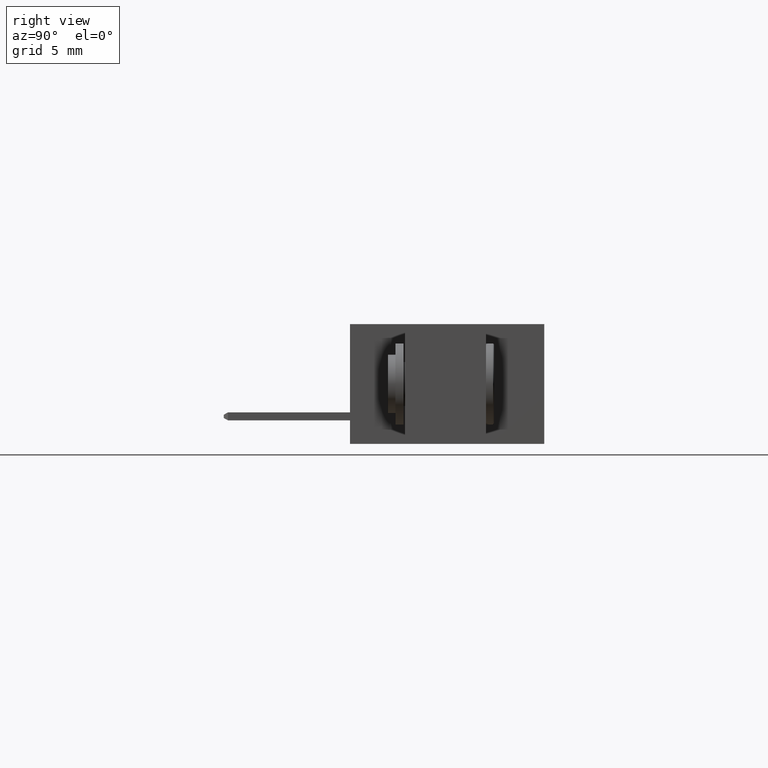
[diagram: clean part render]
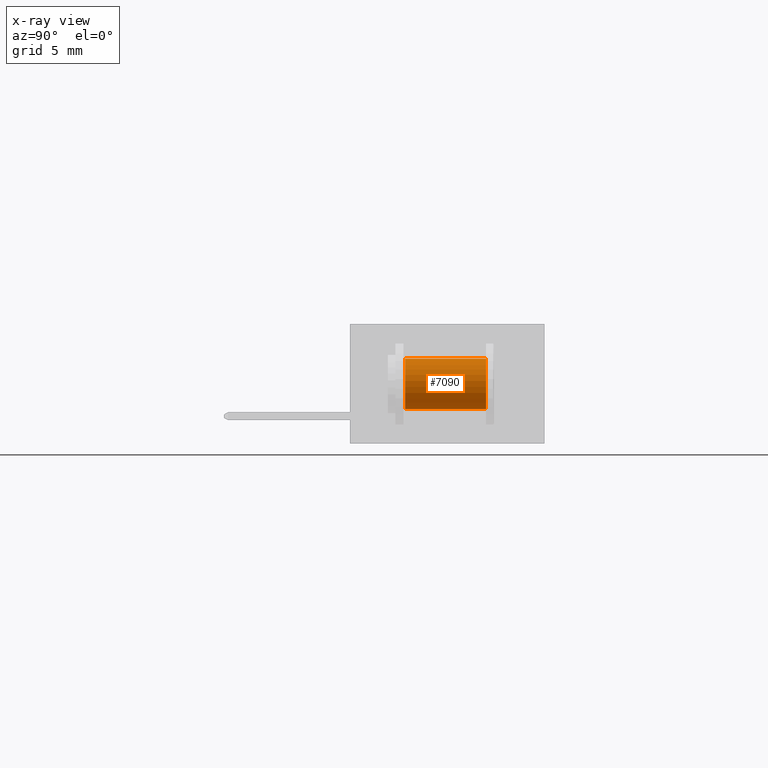
[diagram: x-ray — body ghosted, one internal face saturated and labeled with its STEP entity id]
A machine part, right view, then the same camera in x-ray: the body is ghosted and one INTERNAL B-rep face — a face not visible from any outside direction — is saturated and labeled: STEP entity #7090.
In plain terms, the highlighted cylindrical surface (edge-blend (fillet) strip) has radius 1.9812 mm, axis along (0, 1, 0).
Its self-contained STEP definition (entity closure, byte-faithful):
#250 = CARTESIAN_POINT ( 'NONE',  ( 1.843000000000000000, 0.4199999999999999800, -0.2630000000000001200 ) ) ;
#375 = CARTESIAN_POINT ( 'NONE',  ( 1.843000000000000000, 0.0000000000000000000, -0.1069999999999999300 ) ) ;
#1163 = AXIS2_PLACEMENT_3D ( 'NONE', #8707, #2226, #7141 ) ;
#2226 = DIRECTION ( 'NONE',  ( -0.0000000000000000000, 1.000000000000000000, -0.0000000000000000000 ) ) ;
#2404 = CIRCLE ( 'NONE', #9648, 0.07800000000000009700 ) ;
#2558 = DIRECTION ( 'NONE',  ( 0.0000000000000000000, -1.000000000000000000, -0.0000000000000000000 ) ) ;
#2629 = CARTESIAN_POINT ( 'NONE',  ( 1.843000000000000000, 0.1699999999999999800, -0.1850000000000000000 ) ) ;
#3419 = VECTOR ( 'NONE', #4822, 39.37007874015748100 ) ;
#3604 = CARTESIAN_POINT ( 'NONE',  ( 1.843000000000000000, 0.1699999999999999800, -0.2630000000000001200 ) ) ;
#3654 = ORIENTED_EDGE ( 'NONE', *, *, #9003, .T. ) ;
#4197 = ORIENTED_EDGE ( 'NONE', *, *, #8622, .T. ) ;
#4232 = CARTESIAN_POINT ( 'NONE',  ( 1.843000000000000000, 0.4199999999999999800, -0.1069999999999999300 ) ) ;
#4237 = LINE ( 'NONE', #7793, #7687 ) ;
#4387 = CARTESIAN_POINT ( 'NONE',  ( 1.843000000000000000, 0.1699999999999999800, -0.1069999999999999300 ) ) ;
#4805 = CYLINDRICAL_SURFACE ( 'NONE', #1163, 0.07800000000000008300 ) ;
#4822 = DIRECTION ( 'NONE',  ( -0.0000000000000000000, 1.000000000000000000, -0.0000000000000000000 ) ) ;
#5295 = FACE_OUTER_BOUND ( 'NONE', #5765, .T. ) ;
#5338 = EDGE_CURVE ( 'NONE', #7413, #6280, #2404, .T. ) ;
#5645 = CARTESIAN_POINT ( 'NONE',  ( 1.843000000000000000, 0.4199999999999999800, -0.1850000000000000000 ) ) ;
#5765 = EDGE_LOOP ( 'NONE', ( #9486, #6816, #3654, #4197 ) ) ;
#6027 = CIRCLE ( 'NONE', #9795, 0.07800000000000009700 ) ;
#6280 = VERTEX_POINT ( 'NONE', #4387 ) ;
#6816 = ORIENTED_EDGE ( 'NONE', *, *, #5338, .T. ) ;
#7090 = ADVANCED_FACE ( 'NONE', ( #5295 ), #4805, .F. ) ;
#7141 = DIRECTION ( 'NONE',  ( 0.0000000000000000000, 0.0000000000000000000, 1.000000000000000000 ) ) ;
#7413 = VERTEX_POINT ( 'NONE', #3604 ) ;
#7617 = VERTEX_POINT ( 'NONE', #250 ) ;
#7665 = VERTEX_POINT ( 'NONE', #4232 ) ;
#7687 = VECTOR ( 'NONE', #10123, 39.37007874015748100 ) ;
#7766 = LINE ( 'NONE', #375, #3419 ) ;
#7793 = CARTESIAN_POINT ( 'NONE',  ( 1.843000000000000000, 0.0000000000000000000, -0.2630000000000001200 ) ) ;
#8570 = EDGE_CURVE ( 'NONE', #7413, #7617, #4237, .T. ) ;
#8622 = EDGE_CURVE ( 'NONE', #7665, #7617, #6027, .T. ) ;
#8707 = CARTESIAN_POINT ( 'NONE',  ( 1.843000000000000000, 0.0000000000000000000, -0.1850000000000000000 ) ) ;
#9003 = EDGE_CURVE ( 'NONE', #6280, #7665, #7766, .T. ) ;
#9048 = DIRECTION ( 'NONE',  ( 0.0000000000000000000, 0.0000000000000000000, -1.000000000000000000 ) ) ;
#9486 = ORIENTED_EDGE ( 'NONE', *, *, #8570, .F. ) ;
#9636 = DIRECTION ( 'NONE',  ( 0.0000000000000000000, 0.0000000000000000000, -1.000000000000000000 ) ) ;
#9648 = AXIS2_PLACEMENT_3D ( 'NONE', #2629, #2558, #9048 ) ;
#9669 = DIRECTION ( 'NONE',  ( 0.0000000000000000000, 1.000000000000000000, -0.0000000000000000000 ) ) ;
#9795 = AXIS2_PLACEMENT_3D ( 'NONE', #5645, #9669, #9636 ) ;
#10123 = DIRECTION ( 'NONE',  ( -0.0000000000000000000, 1.000000000000000000, -0.0000000000000000000 ) ) ;